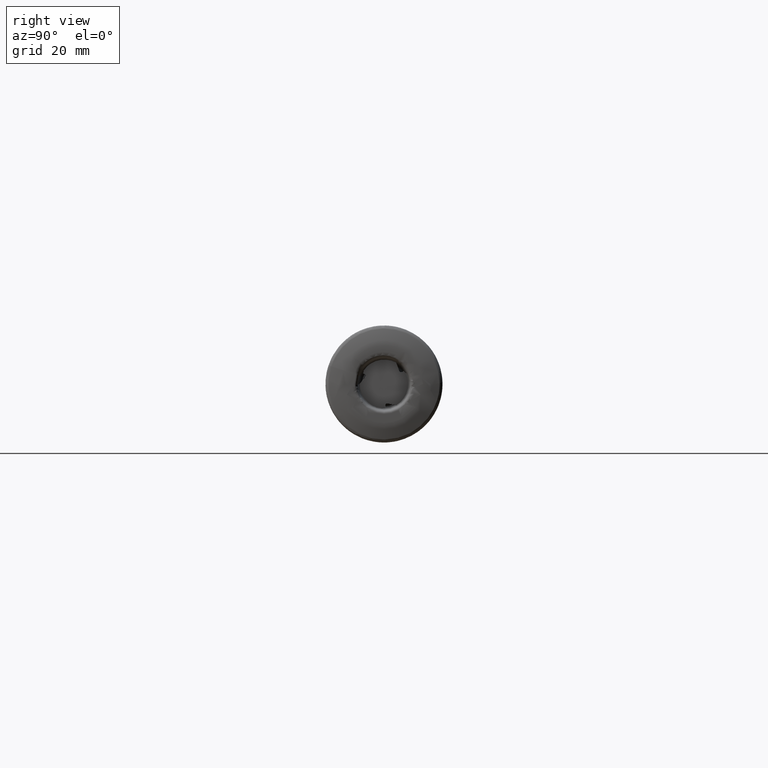
[diagram: clean part render]
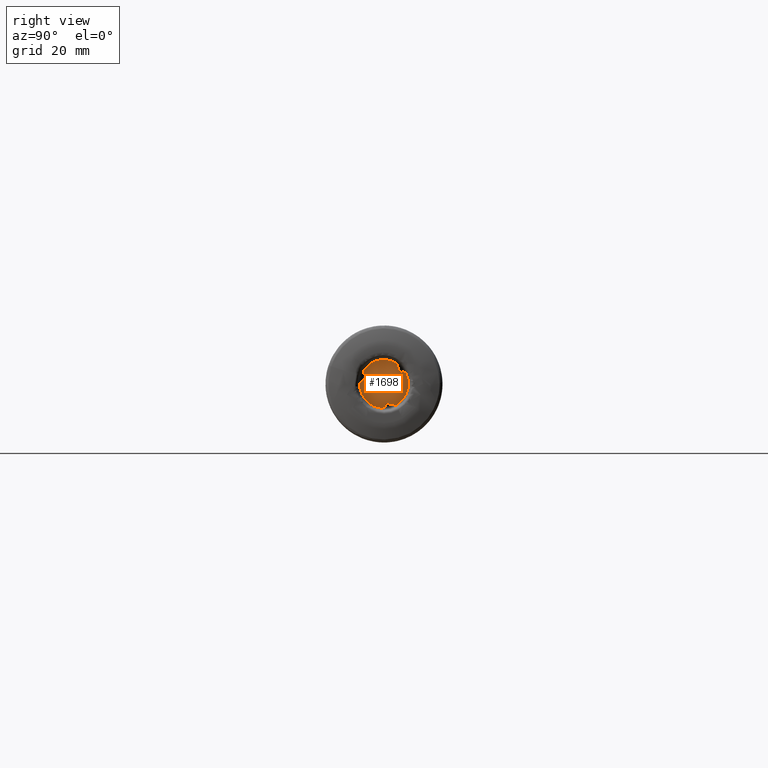
[diagram: same view with one face highlighted and labeled with its STEP entity id]
A machine part, right view. The second image highlights one B-rep face of the part: STEP entity #1698.
In plain terms, the highlighted planar face has unit normal (-1, 0, 0).
Its self-contained STEP definition (entity closure, byte-faithful):
#24 = DIRECTION ( 'NONE',  ( 1.000000000000000000, -0.0000000000000000000, -0.0000000000000000000 ) ) ;
#80 = EDGE_CURVE ( 'Kante53', #2226, #653, #2609, .T. ) ;
#141 = DIRECTION ( 'NONE',  ( 0.0000000000000000000, 0.9999439768675593100, -0.01058504257383584100 ) ) ;
#164 = EDGE_CURVE ( 'NONE', #3712, #943, #2927, .T. ) ;
#200 = VERTEX_POINT ( 'NONE', #3051 ) ;
#212 = EDGE_CURVE ( 'NONE', #1449, #504, #2174, .T. ) ;
#229 = CARTESIAN_POINT ( 'NONE',  ( -1.249999999999999300, -5.118499984458400900, 1.855953177064140600 ) ) ;
#235 = EDGE_CURVE ( 'NONE', #3280, #730, #1611, .T. ) ;
#278 = CARTESIAN_POINT ( 'NONE',  ( -1.249999999999999300, 0.6210684593687037000, -5.298357954938904200 ) ) ;
#279 = CARTESIAN_POINT ( 'NONE',  ( -1.249999999999999300, -0.2442306626527502300, -6.526120147399177000 ) ) ;
#283 = CARTESIAN_POINT ( 'NONE',  ( -1.249999999999999300, -5.118499984458400900, 1.855953177064140600 ) ) ;
#304 = CARTESIAN_POINT ( 'NONE',  ( -1.249999999999999300, 4.831904830396523700, -3.209654985013809200 ) ) ;
#306 = VECTOR ( 'NONE', #1150, 1000.000000000000000 ) ;
#321 = DIRECTION ( 'NONE',  ( 0.0000000000000000000, 0.0000000000000000000, 1.000000000000000000 ) ) ;
#322 = ORIENTED_EDGE ( 'NONE', *, *, #2767, .T. ) ;
#325 = CARTESIAN_POINT ( 'NONE',  ( -1.249999999999999300, 0.9519473926571671000, -5.360727604343306800 ) ) ;
#338 = EDGE_CURVE ( 'NONE', #543, #3604, #3151, .T. ) ;
#349 = DIRECTION ( 'NONE',  ( 0.0000000000000000000, 0.9826942877045427000, -0.1852348156067356900 ) ) ;
#372 = AXIS2_PLACEMENT_3D ( 'NONE', #1532, #1754, #1431 ) ;
#375 = VERTEX_POINT ( 'NONE', #3771 ) ;
#424 = EDGE_CURVE ( 'NONE', #3359, #200, #1324, .T. ) ;
#450 = CARTESIAN_POINT ( 'NONE',  ( -1.249999999999999800, -6.684917532111073900, 0.03320525371042996200 ) ) ;
#456 = EDGE_CURVE ( 'NONE', #730, #3911, #1226, .T. ) ;
#458 = CARTESIAN_POINT ( 'NONE',  ( -1.249999999999999300, 5.536839801807193600, -0.4026464708185191800 ) ) ;
#462 = CARTESIAN_POINT ( 'NONE',  ( -1.249999999999999100, 5.773901167123494100, 3.051550115459226400 ) ) ;
#475 = CARTESIAN_POINT ( 'NONE',  ( -1.249999999999999300, -1.021818731024205500, 6.623020079837997000 ) ) ;
#504 = VERTEX_POINT ( 'NONE', #2762 ) ;
#532 = EDGE_CURVE ( 'NONE', #200, #2478, #716, .T. ) ;
#540 = LINE ( 'NONE', #3885, #2162 ) ;
#543 = VERTEX_POINT ( 'NONE', #2711 ) ;
#590 = DIRECTION ( 'NONE',  ( 0.0000000000000000000, -0.4908050726647020800, 0.8712694076154611200 ) ) ;
#592 = ORIENTED_EDGE ( 'NONE', *, *, #338, .T. ) ;
#605 = CARTESIAN_POINT ( 'NONE',  ( -1.249999999999999800, -0.3958552557617579500, -6.673269334927655700 ) ) ;
#640 = CARTESIAN_POINT ( 'NONE',  ( -1.249999999999999800, 0.0000000000000000000, 0.0000000000000000000 ) ) ;
#651 = DIRECTION ( 'NONE',  ( 0.0000000000000000000, 0.8660254037844469200, -0.4999999999999857300 ) ) ;
#653 = VERTEX_POINT ( 'NONE', #325 ) ;
#678 = CARTESIAN_POINT ( 'NONE',  ( -1.249999999999999300, -5.667602611900952600, 3.083742503036533300 ) ) ;
#694 = CARTESIAN_POINT ( 'NONE',  ( -1.249999999999999300, 4.886604694233406900, 3.241235966124862400 ) ) ;
#716 =( BOUNDED_CURVE ( )  B_SPLINE_CURVE ( 3, ( #773, #3778, #3083, #2441 ),
 .UNSPECIFIED., .F., .T. ) 
 B_SPLINE_CURVE_WITH_KNOTS ( ( 4, 4 ),
 ( 5.947954393517265200, 6.719325931190624600 ),
 .UNSPECIFIED. ) 
 CURVE ( )  GEOMETRIC_REPRESENTATION_ITEM ( )  RATIONAL_B_SPLINE_CURVE ( ( 1.000000000000000000, 0.9510271120094635500, 0.9510271120094635500, 1.000000000000000000 ) ) 
 REPRESENTATION_ITEM ( '' )  );
#717 = LINE ( 'NONE', #304, #1581 ) ;
#730 = VERTEX_POINT ( 'NONE', #450 ) ;
#773 = CARTESIAN_POINT ( 'NONE',  ( -1.249999999999999800, -5.581293142462190100, 3.679455375175046500 ) ) ;
#827 = EDGE_CURVE ( 'NONE', #375, #2178, #717, .T. ) ;
#908 = EDGE_CURVE ( 'NONE', #1549, #3359, #1174, .T. ) ;
#922 = CARTESIAN_POINT ( 'NONE',  ( -1.249999999999999300, 0.1632019595909700300, -6.450159091979527300 ) ) ;
#943 = VERTEX_POINT ( 'NONE', #2814 ) ;
#955 = DIRECTION ( 'NONE',  ( 0.0000000000000000000, 0.0000000000000000000, -1.000000000000000000 ) ) ;
#965 = AXIS2_PLACEMENT_3D ( 'NONE', #640, #2905, #955 ) ;
#1012 = CARTESIAN_POINT ( 'NONE',  ( -1.249999999999999300, 4.277978357636089700, 3.187040040772032100 ) ) ;
#1028 = ORIENTED_EDGE ( 'NONE', *, *, #2517, .T. ) ;
#1048 = CIRCLE ( 'NONE', #965, 6.684999999999999600 ) ;
#1150 = DIRECTION ( 'NONE',  ( 0.0000000000000000000, -0.3309290878715165900, 0.9436556251093541900 ) ) ;
#1174 = LINE ( 'NONE', #458, #306 ) ;
#1176 =( BOUNDED_CURVE ( )  B_SPLINE_CURVE ( 3, ( #3805, #1577, #2228, #283 ),
 .UNSPECIFIED., .F., .T. ) 
 B_SPLINE_CURVE_WITH_KNOTS ( ( 4, 4 ),
 ( 2.006936950805926500, 3.752266202800259800 ),
 .UNSPECIFIED. ) 
 CURVE ( )  GEOMETRIC_REPRESENTATION_ITEM ( )  RATIONAL_B_SPLINE_CURVE ( ( 1.000000000000000000, 0.7618584064576918700, 0.7618584064576918700, 1.000000000000000000 ) ) 
 REPRESENTATION_ITEM ( '' )  );
#1207 = VECTOR ( 'NONE', #2420, 1000.000000000000000 ) ;
#1226 = CIRCLE ( 'NONE', #372, 6.684999999999999600 ) ;
#1241 = CARTESIAN_POINT ( 'NONE',  ( -1.249999999999999300, -0.04828209003653486500, -6.447920398891934500 ) ) ;
#1259 = PLANE ( 'NONE',  #3376 ) ;
#1324 = CIRCLE ( 'NONE', #3898, 6.684999999999999600 ) ;
#1340 = CARTESIAN_POINT ( 'NONE',  ( -1.249999999999999300, 0.9519473926571671000, -5.360727604343306800 ) ) ;
#1431 = DIRECTION ( 'NONE',  ( 0.0000000000000000000, 0.0000000000000000000, -1.000000000000000000 ) ) ;
#1449 = VERTEX_POINT ( 'NONE', #1823 ) ;
#1474 = CARTESIAN_POINT ( 'NONE',  ( -1.249999999999999300, 4.831904830396349700, 3.209654985013900700 ) ) ;
#1521 = EDGE_LOOP ( 'NONE', ( #1527, #2643, #2321, #1889, #3155, #4060, #2812, #3301, #1565, #2769, #3808, #3377, #322, #3135, #2492, #592, #1028, #2404 ) ) ;
#1527 = ORIENTED_EDGE ( 'NONE', *, *, #424, .T. ) ;
#1532 = CARTESIAN_POINT ( 'NONE',  ( -1.249999999999999800, 0.0000000000000000000, 0.0000000000000000000 ) ) ;
#1549 = VERTEX_POINT ( 'NONE', #1859 ) ;
#1565 = ORIENTED_EDGE ( 'NONE', *, *, #164, .T. ) ;
#1577 = CARTESIAN_POINT ( 'NONE',  ( -1.249999999999999300, -4.956710659290620500, 2.441804802950589400 ) ) ;
#1581 = VECTOR ( 'NONE', #651, 999.9999999999998900 ) ;
#1601 = LINE ( 'NONE', #2877, #3123 ) ;
#1611 = LINE ( 'NONE', #475, #1207 ) ;
#1698 = ADVANCED_FACE ( 'Fl�che9', ( #2234 ), #1259, .F. ) ;
#1700 = LINE ( 'NONE', #2195, #4138 ) ;
#1747 = CARTESIAN_POINT ( 'NONE',  ( -1.249999999999999300, 6.615997893752957100, -6.518466038432015000 ) ) ;
#1754 = DIRECTION ( 'NONE',  ( 1.000000000000000000, -0.0000000000000000000, -0.0000000000000000000 ) ) ;
#1823 = CARTESIAN_POINT ( 'NONE',  ( -1.249999999999999800, 5.977148398223899800, 2.993813959752586600 ) ) ;
#1859 = CARTESIAN_POINT ( 'NONE',  ( -1.249999999999999300, 4.166552591801198500, 3.504774427279138600 ) ) ;
#1889 = ORIENTED_EDGE ( 'NONE', *, *, #827, .T. ) ;
#1905 = LINE ( 'NONE', #2256, #3496 ) ;
#1936 = CARTESIAN_POINT ( 'NONE',  ( -1.249999999999999300, 6.684999999999999600, 0.0000000000000000000 ) ) ;
#2072 = VECTOR ( 'NONE', #141, 1000.000000000000100 ) ;
#2135 = DIRECTION ( 'NONE',  ( 0.0000000000000000000, -0.8660254037844327100, -0.5000000000000102100 ) ) ;
#2162 = VECTOR ( 'NONE', #2953, 1000.000000000000000 ) ;
#2174 =( BOUNDED_CURVE ( )  B_SPLINE_CURVE ( 3, ( #3649, #462, #3356, #3667 ),
 .UNSPECIFIED., .F., .T. ) 
 B_SPLINE_CURVE_WITH_KNOTS ( ( 4, 4 ),
 ( 5.947954393517268700, 6.719325931190625500 ),
 .UNSPECIFIED. ) 
 CURVE ( )  GEOMETRIC_REPRESENTATION_ITEM ( )  RATIONAL_B_SPLINE_CURVE ( ( 1.000000000000000000, 0.9510271120094639900, 0.9510271120094639900, 1.000000000000000000 ) ) 
 REPRESENTATION_ITEM ( '' )  );
#2178 = VERTEX_POINT ( 'NONE', #4037 ) ;
#2195 = CARTESIAN_POINT ( 'NONE',  ( -1.249999999999999300, 7.228353438567475000, 0.3060828505715487700 ) ) ;
#2226 = VERTEX_POINT ( 'NONE', #2470 ) ;
#2228 = CARTESIAN_POINT ( 'NONE',  ( -1.249999999999999300, -4.899046817004827600, 2.111317914166847200 ) ) ;
#2234 = FACE_OUTER_BOUND ( 'NONE', #1521, .T. ) ;
#2256 = CARTESIAN_POINT ( 'NONE',  ( -1.249999999999999300, -3.816851332320504200, 6.212383187860396600 ) ) ;
#2268 = DIRECTION ( 'NONE',  ( -1.000000000000000000, 0.0000000000000000000, 0.0000000000000000000 ) ) ;
#2292 = VECTOR ( 'NONE', #2135, 1000.000000000000200 ) ;
#2321 = ORIENTED_EDGE ( 'NONE', *, *, #2791, .T. ) ;
#2368 =( BOUNDED_CURVE ( )  B_SPLINE_CURVE ( 3, ( #605, #279, #1241, #922 ),
 .UNSPECIFIED., .F., .T. ) 
 B_SPLINE_CURVE_WITH_KNOTS ( ( 4, 4 ),
 ( 5.947954393517267800, 6.719325931190627300 ),
 .UNSPECIFIED. ) 
 CURVE ( )  GEOMETRIC_REPRESENTATION_ITEM ( )  RATIONAL_B_SPLINE_CURVE ( ( 1.000000000000000000, 0.9510271120094635500, 0.9510271120094635500, 1.000000000000000000 ) ) 
 REPRESENTATION_ITEM ( '' )  );
#2382 = EDGE_CURVE ( 'NONE', #504, #543, #1700, .T. ) ;
#2404 = ORIENTED_EDGE ( 'NONE', *, *, #908, .T. ) ;
#2411 = EDGE_CURVE ( 'NONE', #3911, #3712, #2368, .T. ) ;
#2420 = DIRECTION ( 'NONE',  ( 0.0000000000000000000, -0.6517651998330236100, -0.7584208095026261400 ) ) ;
#2441 = CARTESIAN_POINT ( 'NONE',  ( -1.249999999999999300, -5.667602611900952600, 3.083742503036533300 ) ) ;
#2467 = EDGE_CURVE ( 'NONE', #653, #2685, #1601, .T. ) ;
#2470 = CARTESIAN_POINT ( 'NONE',  ( -1.249999999999999300, 0.3636903392071984000, -5.852541786520852400 ) ) ;
#2478 = VERTEX_POINT ( 'NONE', #678 ) ;
#2492 = ORIENTED_EDGE ( 'NONE', *, *, #2382, .T. ) ;
#2517 = EDGE_CURVE ( 'NONE', #3604, #1549, #4024, .T. ) ;
#2539 = EDGE_CURVE ( 'NONE', #943, #2226, #540, .T. ) ;
#2608 = CARTESIAN_POINT ( 'NONE',  ( -1.249999999999999800, 0.0000000000000000000, 0.0000000000000000000 ) ) ;
#2609 =( BOUNDED_CURVE ( )  B_SPLINE_CURVE ( 3, ( #3841, #2808, #278, #1340 ),
 .UNSPECIFIED., .F., .T. ) 
 B_SPLINE_CURVE_WITH_KNOTS ( ( 4, 4 ),
 ( 2.006936950805933200, 3.752266202800261600 ),
 .UNSPECIFIED. ) 
 CURVE ( )  GEOMETRIC_REPRESENTATION_ITEM ( )  RATIONAL_B_SPLINE_CURVE ( ( 1.000000000000000000, 0.7618584064576930900, 0.7618584064576930900, 1.000000000000000000 ) ) 
 REPRESENTATION_ITEM ( '' )  );
#2643 = ORIENTED_EDGE ( 'NONE', *, *, #532, .T. ) ;
#2685 = VERTEX_POINT ( 'NONE', #3475 ) ;
#2710 = EDGE_CURVE ( 'NONE', #2178, #3280, #1176, .T. ) ;
#2711 = CARTESIAN_POINT ( 'NONE',  ( -1.249999999999998000, 5.405994425558892800, 3.541105767319966600 ) ) ;
#2762 = CARTESIAN_POINT ( 'NONE',  ( -1.249999999999999300, 5.504400652309940700, 3.366416588942970500 ) ) ;
#2767 = EDGE_CURVE ( 'NONE', #2685, #1449, #1048, .T. ) ;
#2769 = ORIENTED_EDGE ( 'NONE', *, *, #2539, .T. ) ;
#2791 = EDGE_CURVE ( 'NONE', #2478, #375, #1905, .T. ) ;
#2808 = CARTESIAN_POINT ( 'NONE',  ( -1.249999999999999300, 0.3636903392071957300, -5.513539751630087700 ) ) ;
#2812 = ORIENTED_EDGE ( 'NONE', *, *, #456, .T. ) ;
#2814 = CARTESIAN_POINT ( 'NONE',  ( -1.249999999999998000, 0.3636903392072020100, -6.452281388911048400 ) ) ;
#2825 = CARTESIAN_POINT ( 'NONE',  ( -1.249999999999999800, 3.371215359307900600, 5.772705778156938200 ) ) ;
#2877 = CARTESIAN_POINT ( 'NONE',  ( -1.249999999999999300, 5.512478929216930700, -6.220373609019523200 ) ) ;
#2905 = DIRECTION ( 'NONE',  ( 1.000000000000000000, -0.0000000000000000000, -0.0000000000000000000 ) ) ;
#2927 = LINE ( 'NONE', #1747, #2072 ) ;
#2953 = DIRECTION ( 'NONE',  ( 0.0000000000000000000, -7.228691588707027000E-015, 1.000000000000000000 ) ) ;
#3051 = CARTESIAN_POINT ( 'NONE',  ( -1.249999999999999800, -5.581293142462190100, 3.679455375175046500 ) ) ;
#3083 = CARTESIAN_POINT ( 'NONE',  ( -1.249999999999999300, -5.559921822002066500, 3.265773715965364100 ) ) ;
#3123 = VECTOR ( 'NONE', #349, 1000.000000000000200 ) ;
#3135 = ORIENTED_EDGE ( 'NONE', *, *, #212, .T. ) ;
#3151 = LINE ( 'NONE', #1474, #2292 ) ;
#3155 = ORIENTED_EDGE ( 'NONE', *, *, #2710, .T. ) ;
#3247 = CARTESIAN_POINT ( 'NONE',  ( -1.249999999999999300, 4.593020320083388300, 3.071734948679475200 ) ) ;
#3264 = CARTESIAN_POINT ( 'NONE',  ( -1.249999999999999300, 4.166552591801198500, 3.504774427279138600 ) ) ;
#3280 = VERTEX_POINT ( 'NONE', #229 ) ;
#3301 = ORIENTED_EDGE ( 'NONE', *, *, #2411, .T. ) ;
#3323 = CARTESIAN_POINT ( 'NONE',  ( -1.249999999999999300, 0.1632019595909700300, -6.450159091979527300 ) ) ;
#3356 = CARTESIAN_POINT ( 'NONE',  ( -1.249999999999999100, 5.608203912038560700, 3.182146682926546800 ) ) ;
#3359 = VERTEX_POINT ( 'NONE', #2825 ) ;
#3376 = AXIS2_PLACEMENT_3D ( 'NONE', #1936, #2268, #321 ) ;
#3377 = ORIENTED_EDGE ( 'NONE', *, *, #2467, .T. ) ;
#3475 = CARTESIAN_POINT ( 'NONE',  ( -1.249999999999999800, 3.313702172803146200, -5.805911031867411900 ) ) ;
#3496 = VECTOR ( 'NONE', #4145, 1000.000000000000000 ) ;
#3569 = CARTESIAN_POINT ( 'NONE',  ( -1.249999999999999300, 4.886604694233406900, 3.241235966124862400 ) ) ;
#3604 = VERTEX_POINT ( 'NONE', #3569 ) ;
#3640 = DIRECTION ( 'NONE',  ( 0.0000000000000000000, 0.0000000000000000000, -1.000000000000000000 ) ) ;
#3649 = CARTESIAN_POINT ( 'NONE',  ( -1.249999999999999800, 5.977148398223899800, 2.993813959752586600 ) ) ;
#3667 = CARTESIAN_POINT ( 'NONE',  ( -1.249999999999999300, 5.504400652309940700, 3.366416588942970500 ) ) ;
#3712 = VERTEX_POINT ( 'NONE', #3323 ) ;
#3771 = CARTESIAN_POINT ( 'NONE',  ( -1.249999999999999800, -5.769684764766137300, 2.911175621591053800 ) ) ;
#3778 = CARTESIAN_POINT ( 'NONE',  ( -1.249999999999999300, -5.529670504470788100, 3.474570031939928400 ) ) ;
#3805 = CARTESIAN_POINT ( 'NONE',  ( -1.249999999999999300, -5.250295033440646200, 2.611305820395966900 ) ) ;
#3808 = ORIENTED_EDGE ( 'NONE', *, *, #80, .T. ) ;
#3841 = CARTESIAN_POINT ( 'NONE',  ( -1.249999999999999300, 0.3636903392071984000, -5.852541786520852400 ) ) ;
#3885 = CARTESIAN_POINT ( 'NONE',  ( -1.249999999999999300, 0.3636903392071561500, -4.569479797458569700E-014 ) ) ;
#3898 = AXIS2_PLACEMENT_3D ( 'NONE', #2608, #24, #3640 ) ;
#3911 = VERTEX_POINT ( 'NONE', #4018 ) ;
#4018 = CARTESIAN_POINT ( 'NONE',  ( -1.249999999999999800, -0.3958552557617579500, -6.673269334927655700 ) ) ;
#4024 =( BOUNDED_CURVE ( )  B_SPLINE_CURVE ( 3, ( #694, #3247, #1012, #3264 ),
 .UNSPECIFIED., .F., .F. ) 
 B_SPLINE_CURVE_WITH_KNOTS ( ( 4, 4 ),
 ( 2.006936950805931400, 3.752266202800261100 ),
 .UNSPECIFIED. ) 
 CURVE ( )  GEOMETRIC_REPRESENTATION_ITEM ( )  RATIONAL_B_SPLINE_CURVE ( ( 1.000000000000000000, 0.7618584064576927600, 0.7618584064576927600, 1.000000000000000000 ) ) 
 REPRESENTATION_ITEM ( '' )  );
#4037 = CARTESIAN_POINT ( 'NONE',  ( -1.249999999999999300, -5.250295033440646200, 2.611305820395966900 ) ) ;
#4060 = ORIENTED_EDGE ( 'NONE', *, *, #235, .T. ) ;
#4138 = VECTOR ( 'NONE', #590, 1000.000000000000000 ) ;
#4145 = DIRECTION ( 'NONE',  ( 0.0000000000000000000, -0.5091389042028533500, -0.8606843650416322600 ) ) ;